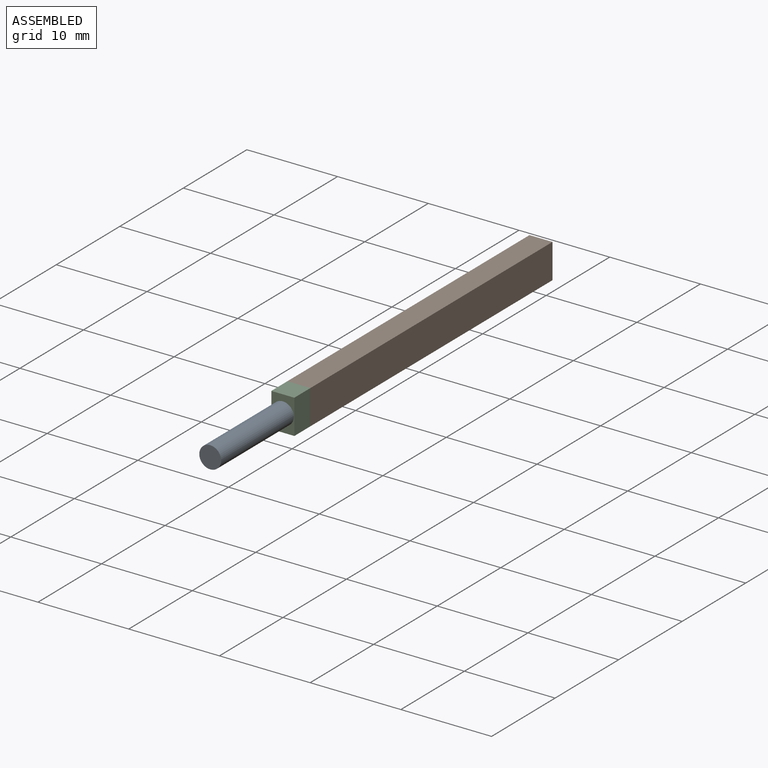
[diagram: assembled view]
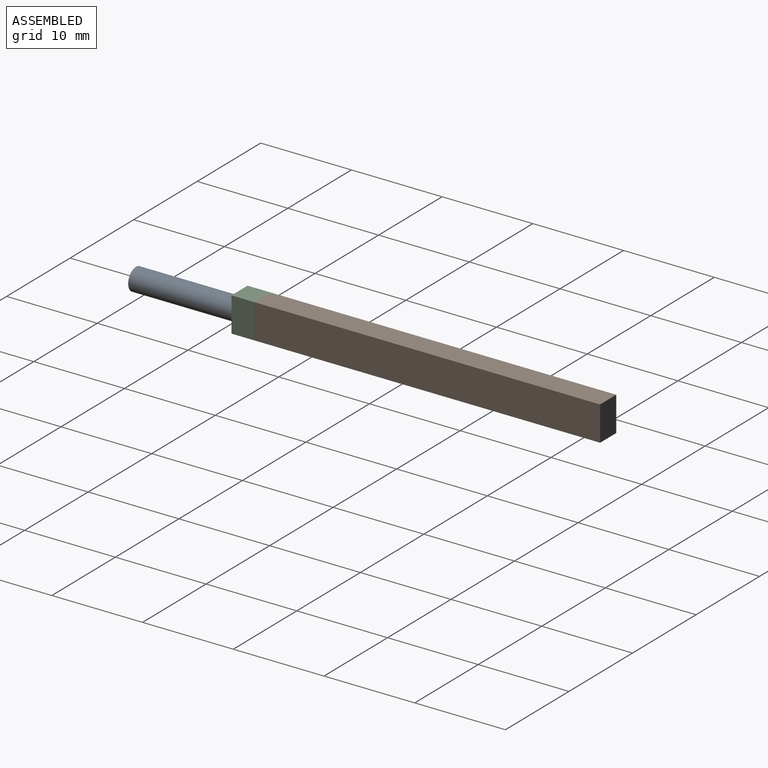
[diagram: assembled view, second angle]
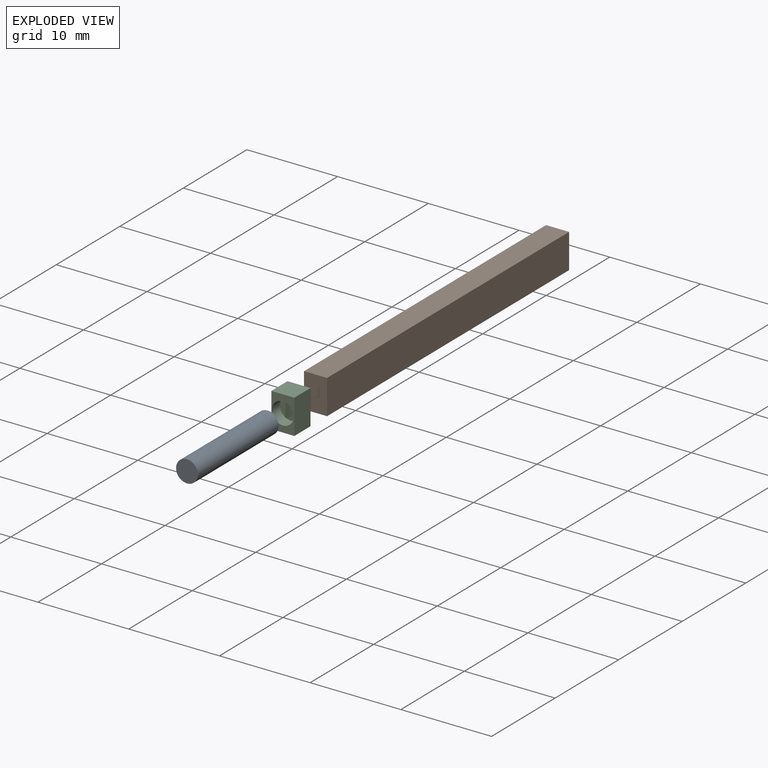
[diagram: exploded view]
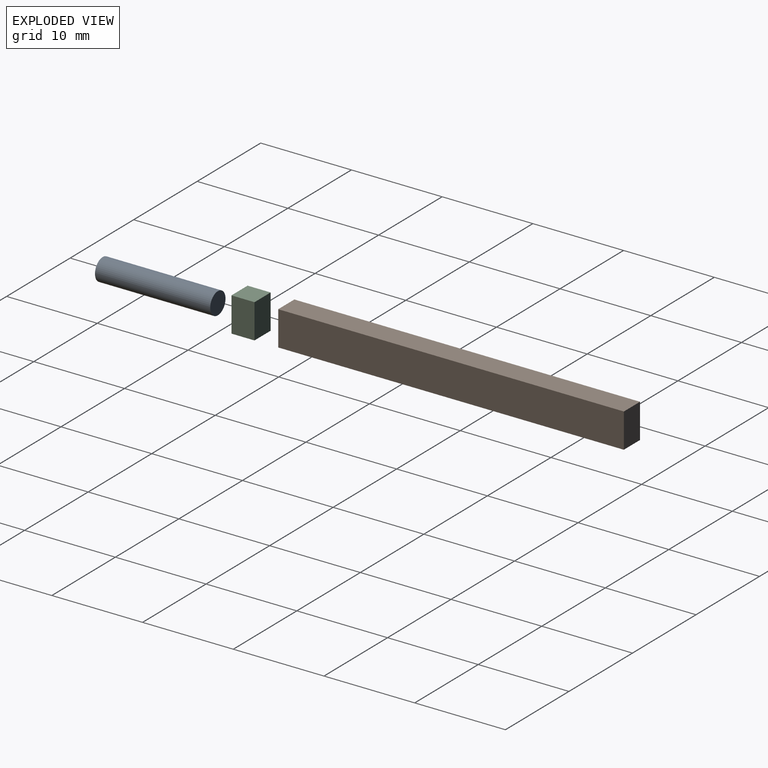
[diagram: exploded view, second angle]
ASSEMBLY  parts=3 mates=2
PART A: 3 faces, bbox 2.4x12.7x2.4 mm
  f0: cylinder r=1.21mm len=12.7mm, axis (0,1,0), area 96.3mm2, adj f1,f2
  f1: plane 2.41x2.41mm, normal (0,-1,0), area 4.6mm2, adj f0
  f2: plane 2.41x2.41mm, normal (0,1,0), area 4.6mm2, adj f0
PART B: 6 faces, bbox 2.5x38.1x3.8 mm
  f0: plane 38.1x2.54mm, normal (0,0,1), area 96.8mm2, adj f1,f3,f4,f5
  f1: plane 38.1x3.81mm, normal (-1,0,0), area 145.2mm2, adj f0,f2,f4,f5
  f2: plane 38.1x2.54mm, normal (0,0,-1), area 96.8mm2, adj f1,f3,f4,f5
  f3: plane 38.1x3.81mm, normal (1,0,0), area 145.2mm2, adj f0,f2,f4,f5
  f4: plane 3.81x2.54mm, normal (0,-1,0), area 9.7mm2, adj f0,f1,f2,f3
  f5: plane 3.81x2.54mm, normal (0,1,0), area 9.7mm2, adj f0,f1,f2,f3
PART C: 8 faces, bbox 2.5x2.5x3.8 mm
  f0: plane 2.54x2.54mm, normal (0,0,1), area 6.5mm2, adj f1,f3,f4,f5
  f1: plane 3.81x2.54mm, normal (-1,0,0), area 9.7mm2, adj f0,f2,f4,f5
  f2: plane 2.54x2.54mm, normal (0,0,-1), area 6.5mm2, adj f1,f3,f4,f5
  f3: plane 3.81x2.54mm, normal (1,0,0), area 9.7mm2, adj f0,f2,f4,f5
  f4: plane 3.81x2.54mm, normal (0,-1,0), area 5.1mm2, adj f0,f1,f2,f3,f6
  f5: plane 3.81x2.54mm, normal (0,1,0), area 9.7mm2, adj f0,f1,f2,f3
  f6: cylinder r=1.21mm len=2.41mm, axis (0,-1,0), area 9.6mm2, adj f4,f7
  f7: plane 2.41x2.41mm, normal (0,-1,0), area 4.6mm2, adj f6
PLACE A t=(-3.96,3.72,-2.42)mm
PLACE B t=(-3.96,40.55,-2.42)mm
PLACE C t=(-3.96,2.45,-2.42)mm
MATE fastened B.f4 <-> C.f6  axis (0,-1,0) through (-3.96,2.45,-2.42)mm
MATE fastened C.f6 <-> A.f0  axis (0,-1,0) through (-3.96,1.18,-2.42)mm
